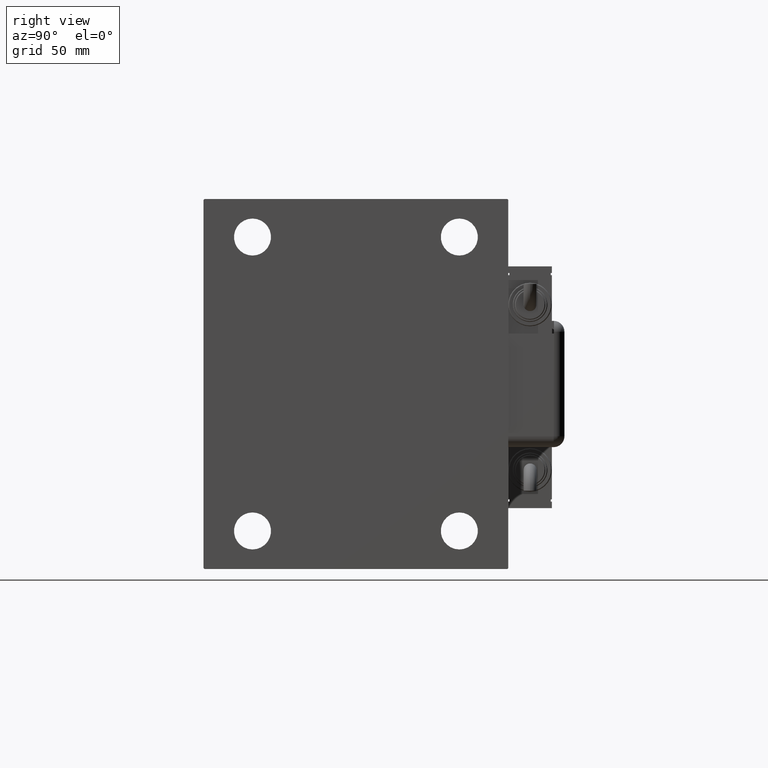
[diagram: clean part render]
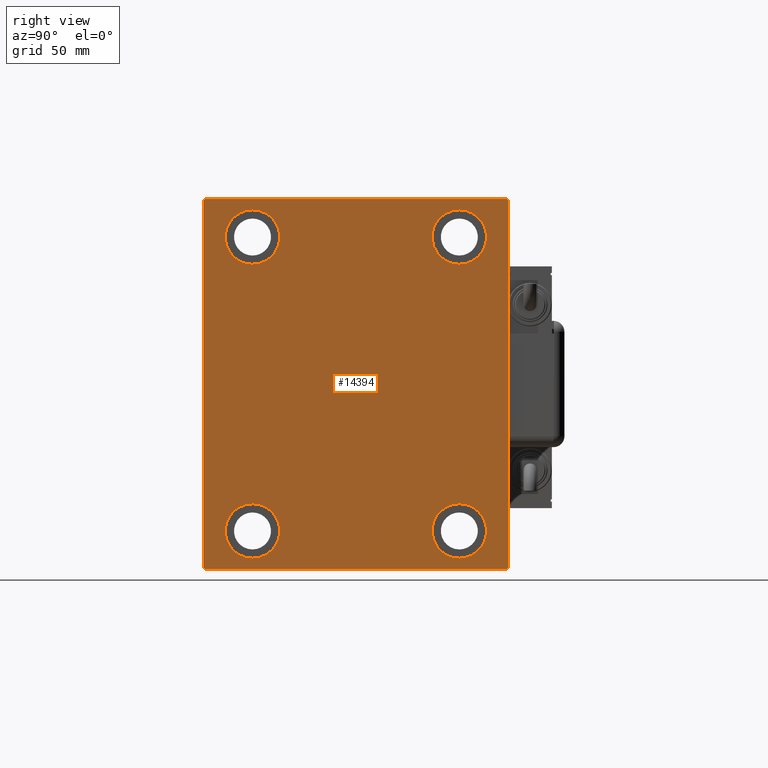
[diagram: same view with one face highlighted and labeled with its STEP entity id]
A machine part, right view. The second image highlights one B-rep face of the part: STEP entity #14394.
In plain terms, the highlighted planar face has unit normal (1, 0, 0).
Its self-contained STEP definition (entity closure, byte-faithful):
#301 = CARTESIAN_POINT ( 'NONE',  ( 185.0000000000000000, -47.49999999999997868, 55.00000000000000000 ) ) ;
#366 = DIRECTION ( 'NONE',  ( 0.000000000000000000, 0.000000000000000000, -1.000000000000000000 ) ) ;
#383 = EDGE_CURVE ( 'NONE', #9586, #8530, #44020, .T. ) ;
#508 = AXIS2_PLACEMENT_3D ( 'NONE', #1195, #28744, #47518 ) ;
#1195 = CARTESIAN_POINT ( 'NONE',  ( 185.0000000000000000, 47.50000000000000711, -67.50000000000000000 ) ) ;
#2037 = ORIENTED_EDGE ( 'NONE', *, *, #34630, .T. ) ;
#2566 = CARTESIAN_POINT ( 'NONE',  ( 185.0000000000000000, -69.49999999999994316, -85.00000000000002842 ) ) ;
#2673 = ORIENTED_EDGE ( 'NONE', *, *, #59832, .T. ) ;
#2761 = CARTESIAN_POINT ( 'NONE',  ( 185.0000000000000000, 69.50000000000007105, -85.00000000000001421 ) ) ;
#3009 = DIRECTION ( 'NONE',  ( -1.000000000000000000, -0.000000000000000000, -0.000000000000000000 ) ) ;
#3185 = DIRECTION ( 'NONE',  ( 0.000000000000000000, -8.163404592832031500E-17, 1.000000000000000000 ) ) ;
#3500 = CARTESIAN_POINT ( 'NONE',  ( 185.0000000000000000, 70.00000000000002842, -85.00000000000001421 ) ) ;
#4302 = FACE_BOUND ( 'NONE', #56807, .T. ) ;
#4604 = FACE_BOUND ( 'NONE', #8335, .T. ) ;
#4636 = VECTOR ( 'NONE', #49444, 1000.000000000000000 ) ;
#4887 = CARTESIAN_POINT ( 'NONE',  ( 185.0000000000000000, -47.49999999999999289, -67.50000000000000000 ) ) ;
#5338 = CIRCLE ( 'NONE', #508, 12.49999999999999645 ) ;
#5818 = VERTEX_POINT ( 'NONE', #56350 ) ;
#6257 = CARTESIAN_POINT ( 'NONE',  ( 185.0000000000000000, 77.25000000000100897, -77.24999999999886313 ) ) ;
#6544 = EDGE_CURVE ( 'NONE', #32692, #13186, #26680, .T. ) ;
#7544 = EDGE_CURVE ( 'NONE', #52314, #39511, #38333, .T. ) ;
#7596 = VERTEX_POINT ( 'NONE', #33189 ) ;
#7683 = CARTESIAN_POINT ( 'NONE',  ( 185.0000000000000000, 70.00000000000001421, 85.00000000000000000 ) ) ;
#8021 = LINE ( 'NONE', #3500, #50806 ) ;
#8100 = ORIENTED_EDGE ( 'NONE', *, *, #24934, .T. ) ;
#8335 = EDGE_LOOP ( 'NONE', ( #54123, #39006 ) ) ;
#8530 = VERTEX_POINT ( 'NONE', #30822 ) ;
#8801 = EDGE_CURVE ( 'NONE', #54414, #7596, #10810, .T. ) ;
#8843 = DIRECTION ( 'NONE',  ( 1.000000000000000000, 0.000000000000000000, 0.000000000000000000 ) ) ;
#9064 = CARTESIAN_POINT ( 'NONE',  ( 185.0000000000000000, 77.25000000000099476, 77.24999999999884892 ) ) ;
#9186 = DIRECTION ( 'NONE',  ( 0.000000000000000000, 0.000000000000000000, 1.000000000000000000 ) ) ;
#9586 = VERTEX_POINT ( 'NONE', #13465 ) ;
#10810 = LINE ( 'NONE', #6257, #22932 ) ;
#11021 = DIRECTION ( 'NONE',  ( 0.000000000000000000, 0.000000000000000000, 1.000000000000000000 ) ) ;
#12119 = DIRECTION ( 'NONE',  ( 0.000000000000000000, 0.000000000000000000, 1.000000000000000000 ) ) ;
#12225 = DIRECTION ( 'NONE',  ( 0.000000000000000000, -1.000000000000000000, -9.912705577010325549E-17 ) ) ;
#12469 = CIRCLE ( 'NONE', #45334, 12.50000000000001066 ) ;
#13186 = VERTEX_POINT ( 'NONE', #301 ) ;
#13290 = VECTOR ( 'NONE', #37108, 1000.000000000000000 ) ;
#13433 = LINE ( 'NONE', #36750, #55731 ) ;
#13458 = CARTESIAN_POINT ( 'NONE',  ( 185.0000000000000000, -77.24999999999901945, -77.25000000000116529 ) ) ;
#13465 = CARTESIAN_POINT ( 'NONE',  ( 185.0000000000000000, -47.49999999999999289, -80.00000000000000000 ) ) ;
#14371 = CIRCLE ( 'NONE', #52070, 12.50000000000001066 ) ;
#14394 = ADVANCED_FACE ( 'NONE', ( #4302, #54890, #36419, #4604, #51251 ), #59718, .T. ) ;
#14926 = CARTESIAN_POINT ( 'NONE',  ( 185.0000000000000000, 47.50000000000000711, -80.00000000000000000 ) ) ;
#15026 = AXIS2_PLACEMENT_3D ( 'NONE', #20316, #3009, #16930 ) ;
#15114 = EDGE_CURVE ( 'NONE', #33986, #43749, #30992, .T. ) ;
#16930 = DIRECTION ( 'NONE',  ( 0.000000000000000000, 0.000000000000000000, 1.000000000000000000 ) ) ;
#17455 = EDGE_CURVE ( 'NONE', #48337, #5818, #45005, .T. ) ;
#18374 = DIRECTION ( 'NONE',  ( 0.000000000000000000, 0.000000000000000000, 1.000000000000000000 ) ) ;
#18463 = LINE ( 'NONE', #9064, #50848 ) ;
#20166 = EDGE_CURVE ( 'NONE', #8530, #9586, #30279, .T. ) ;
#20316 = CARTESIAN_POINT ( 'NONE',  ( 185.0000000000000000, -47.49999999999999289, -67.50000000000000000 ) ) ;
#21575 = ORIENTED_EDGE ( 'NONE', *, *, #54476, .T. ) ;
#22848 = CARTESIAN_POINT ( 'NONE',  ( 185.0000000000000000, -47.49999999999997868, 67.50000000000000000 ) ) ;
#22932 = VECTOR ( 'NONE', #43513, 999.9999999999998863 ) ;
#23155 = DIRECTION ( 'NONE',  ( -0.000000000000000000, 0.7071067811865574537, -0.7071067811865376918 ) ) ;
#23467 = ORIENTED_EDGE ( 'NONE', *, *, #30947, .T. ) ;
#23693 = CARTESIAN_POINT ( 'NONE',  ( 185.0000000000000000, 0.000000000000000000, 0.000000000000000000 ) ) ;
#24411 = LINE ( 'NONE', #46801, #13290 ) ;
#24422 = CARTESIAN_POINT ( 'NONE',  ( 185.0000000000000000, 47.50000000000000711, 55.00000000000000000 ) ) ;
#24934 = EDGE_CURVE ( 'NONE', #5818, #48337, #5338, .T. ) ;
#26680 = CIRCLE ( 'NONE', #58576, 12.50000000000001066 ) ;
#26824 = EDGE_LOOP ( 'NONE', ( #39901, #32949 ) ) ;
#27279 = CARTESIAN_POINT ( 'NONE',  ( 185.0000000000000000, 69.50000000000004263, 85.00000000000000000 ) ) ;
#27646 = VECTOR ( 'NONE', #23155, 999.9999999999998863 ) ;
#28160 = DIRECTION ( 'NONE',  ( -0.000000000000000000, -0.7071067811865376918, 0.7071067811865573427 ) ) ;
#28744 = DIRECTION ( 'NONE',  ( -1.000000000000000000, -0.000000000000000000, -0.000000000000000000 ) ) ;
#28818 = DIRECTION ( 'NONE',  ( -1.000000000000000000, -0.000000000000000000, -0.000000000000000000 ) ) ;
#29410 = DIRECTION ( 'NONE',  ( -1.000000000000000000, -0.000000000000000000, -0.000000000000000000 ) ) ;
#30012 = CARTESIAN_POINT ( 'NONE',  ( 185.0000000000000000, 47.50000000000000711, -67.50000000000000000 ) ) ;
#30279 = CIRCLE ( 'NONE', #54482, 12.49999999999999645 ) ;
#30822 = CARTESIAN_POINT ( 'NONE',  ( 185.0000000000000000, -47.49999999999999289, -55.00000000000000711 ) ) ;
#30947 = EDGE_CURVE ( 'NONE', #55949, #43882, #36174, .T. ) ;
#30965 = LINE ( 'NONE', #36704, #4636 ) ;
#30992 = LINE ( 'NONE', #7683, #58929 ) ;
#31902 = EDGE_LOOP ( 'NONE', ( #41436, #44820 ) ) ;
#32564 = CARTESIAN_POINT ( 'NONE',  ( 185.0000000000000000, -69.99999999999998579, 84.49999999999995737 ) ) ;
#32692 = VERTEX_POINT ( 'NONE', #48418 ) ;
#32949 = ORIENTED_EDGE ( 'NONE', *, *, #38084, .T. ) ;
#33189 = CARTESIAN_POINT ( 'NONE',  ( 185.0000000000000000, 70.00000000000002842, -84.50000000000004263 ) ) ;
#33986 = VERTEX_POINT ( 'NONE', #27279 ) ;
#34325 = CARTESIAN_POINT ( 'NONE',  ( 185.0000000000000000, -47.49999999999997868, 67.50000000000000000 ) ) ;
#34630 = EDGE_CURVE ( 'NONE', #43749, #59403, #24411, .T. ) ;
#34632 = DIRECTION ( 'NONE',  ( -1.000000000000000000, -0.000000000000000000, -0.000000000000000000 ) ) ;
#35411 = AXIS2_PLACEMENT_3D ( 'NONE', #47445, #46827, #18374 ) ;
#36174 = LINE ( 'NONE', #13458, #27646 ) ;
#36419 = FACE_BOUND ( 'NONE', #26824, .T. ) ;
#36704 = CARTESIAN_POINT ( 'NONE',  ( 185.0000000000000000, -69.99999999999998579, 84.99999999999998579 ) ) ;
#36745 = ORIENTED_EDGE ( 'NONE', *, *, #8801, .T. ) ;
#36750 = CARTESIAN_POINT ( 'NONE',  ( 185.0000000000000000, -69.99999999999998579, -85.00000000000002842 ) ) ;
#37108 = DIRECTION ( 'NONE',  ( 0.000000000000000000, -0.7071067811865279218, -0.7071067811865672237 ) ) ;
#37313 = VERTEX_POINT ( 'NONE', #44603 ) ;
#37399 = EDGE_CURVE ( 'NONE', #59403, #55949, #30965, .T. ) ;
#38084 = EDGE_CURVE ( 'NONE', #39511, #52314, #12469, .T. ) ;
#38333 = CIRCLE ( 'NONE', #35411, 12.50000000000001066 ) ;
#39006 = ORIENTED_EDGE ( 'NONE', *, *, #20166, .T. ) ;
#39174 = AXIS2_PLACEMENT_3D ( 'NONE', #30012, #29410, #12119 ) ;
#39511 = VERTEX_POINT ( 'NONE', #45748 ) ;
#39575 = ORIENTED_EDGE ( 'NONE', *, *, #37399, .T. ) ;
#39901 = ORIENTED_EDGE ( 'NONE', *, *, #7544, .T. ) ;
#41351 = ORIENTED_EDGE ( 'NONE', *, *, #15114, .T. ) ;
#41436 = ORIENTED_EDGE ( 'NONE', *, *, #41792, .T. ) ;
#41792 = EDGE_CURVE ( 'NONE', #13186, #32692, #14371, .T. ) ;
#42832 = DIRECTION ( 'NONE',  ( -1.000000000000000000, -0.000000000000000000, -0.000000000000000000 ) ) ;
#43513 = DIRECTION ( 'NONE',  ( -0.000000000000000000, 0.7071067811865376918, 0.7071067811865574537 ) ) ;
#43749 = VERTEX_POINT ( 'NONE', #46786 ) ;
#43882 = VERTEX_POINT ( 'NONE', #2566 ) ;
#44020 = CIRCLE ( 'NONE', #15026, 12.49999999999999645 ) ;
#44603 = CARTESIAN_POINT ( 'NONE',  ( 185.0000000000000000, 70.00000000000001421, 84.50000000000001421 ) ) ;
#44820 = ORIENTED_EDGE ( 'NONE', *, *, #6544, .T. ) ;
#45005 = CIRCLE ( 'NONE', #39174, 12.49999999999999645 ) ;
#45334 = AXIS2_PLACEMENT_3D ( 'NONE', #51323, #42832, #56455 ) ;
#45748 = CARTESIAN_POINT ( 'NONE',  ( 185.0000000000000000, 47.50000000000000711, 80.00000000000001421 ) ) ;
#46786 = CARTESIAN_POINT ( 'NONE',  ( 185.0000000000000000, -69.49999999999998579, 84.99999999999998579 ) ) ;
#46801 = CARTESIAN_POINT ( 'NONE',  ( 185.0000000000000000, -77.25000000000191847, 77.24999999999761258 ) ) ;
#46827 = DIRECTION ( 'NONE',  ( -1.000000000000000000, -0.000000000000000000, -0.000000000000000000 ) ) ;
#47445 = CARTESIAN_POINT ( 'NONE',  ( 185.0000000000000000, 47.50000000000000711, 67.50000000000000000 ) ) ;
#47518 = DIRECTION ( 'NONE',  ( 0.000000000000000000, 0.000000000000000000, 1.000000000000000000 ) ) ;
#48337 = VERTEX_POINT ( 'NONE', #14926 ) ;
#48418 = CARTESIAN_POINT ( 'NONE',  ( 185.0000000000000000, -47.49999999999997868, 80.00000000000001421 ) ) ;
#48474 = DIRECTION ( 'NONE',  ( 0.000000000000000000, 0.000000000000000000, 1.000000000000000000 ) ) ;
#49444 = DIRECTION ( 'NONE',  ( 0.000000000000000000, 0.000000000000000000, -1.000000000000000000 ) ) ;
#50104 = DIRECTION ( 'NONE',  ( -1.000000000000000000, -0.000000000000000000, -0.000000000000000000 ) ) ;
#50806 = VECTOR ( 'NONE', #3185, 1000.000000000000000 ) ;
#50848 = VECTOR ( 'NONE', #28160, 1000.000000000000114 ) ;
#51181 = ORIENTED_EDGE ( 'NONE', *, *, #17455, .T. ) ;
#51251 = FACE_OUTER_BOUND ( 'NONE', #55396, .T. ) ;
#51323 = CARTESIAN_POINT ( 'NONE',  ( 185.0000000000000000, 47.50000000000000711, 67.50000000000000000 ) ) ;
#52070 = AXIS2_PLACEMENT_3D ( 'NONE', #34325, #34632, #11021 ) ;
#52314 = VERTEX_POINT ( 'NONE', #24422 ) ;
#52961 = EDGE_CURVE ( 'NONE', #7596, #37313, #8021, .T. ) ;
#54123 = ORIENTED_EDGE ( 'NONE', *, *, #383, .T. ) ;
#54414 = VERTEX_POINT ( 'NONE', #2761 ) ;
#54476 = EDGE_CURVE ( 'NONE', #37313, #33986, #18463, .T. ) ;
#54482 = AXIS2_PLACEMENT_3D ( 'NONE', #4887, #28818, #48474 ) ;
#54613 = DIRECTION ( 'NONE',  ( 0.000000000000000000, 1.000000000000000000, 9.912705577010325549E-17 ) ) ;
#54890 = FACE_BOUND ( 'NONE', #31902, .T. ) ;
#55396 = EDGE_LOOP ( 'NONE', ( #41351, #2037, #39575, #23467, #2673, #36745, #59140, #21575 ) ) ;
#55731 = VECTOR ( 'NONE', #54613, 1000.000000000000000 ) ;
#55949 = VERTEX_POINT ( 'NONE', #57742 ) ;
#55989 = AXIS2_PLACEMENT_3D ( 'NONE', #23693, #8843, #366 ) ;
#56350 = CARTESIAN_POINT ( 'NONE',  ( 185.0000000000000000, 47.50000000000000711, -55.00000000000000711 ) ) ;
#56455 = DIRECTION ( 'NONE',  ( 0.000000000000000000, 0.000000000000000000, 1.000000000000000000 ) ) ;
#56807 = EDGE_LOOP ( 'NONE', ( #51181, #8100 ) ) ;
#57742 = CARTESIAN_POINT ( 'NONE',  ( 185.0000000000000000, -69.99999999999998579, -84.49999999999998579 ) ) ;
#58576 = AXIS2_PLACEMENT_3D ( 'NONE', #22848, #50104, #9186 ) ;
#58929 = VECTOR ( 'NONE', #12225, 1000.000000000000000 ) ;
#59140 = ORIENTED_EDGE ( 'NONE', *, *, #52961, .T. ) ;
#59403 = VERTEX_POINT ( 'NONE', #32564 ) ;
#59718 = PLANE ( 'NONE',  #55989 ) ;
#59832 = EDGE_CURVE ( 'NONE', #43882, #54414, #13433, .T. ) ;